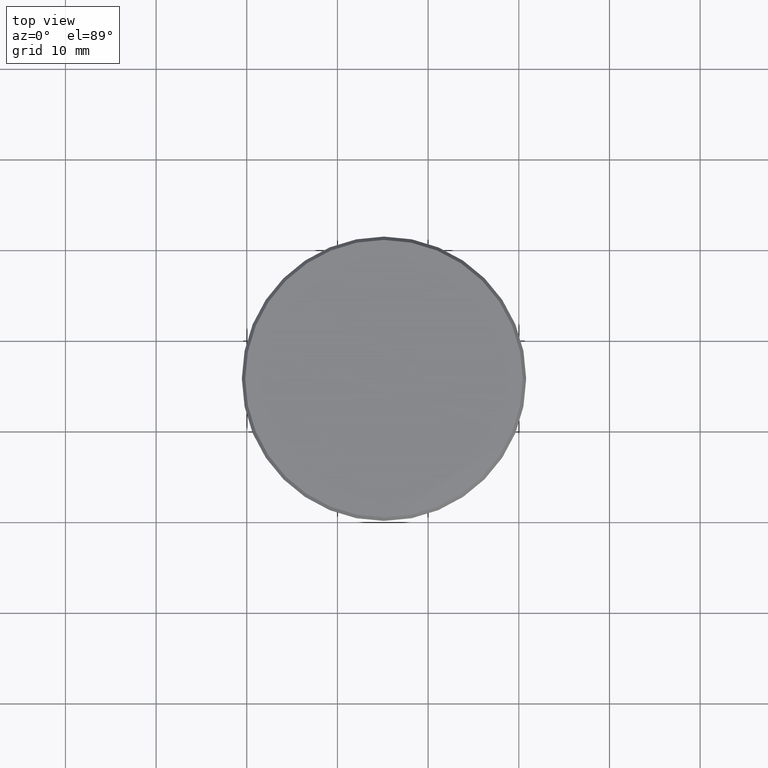
[diagram: clean part render]
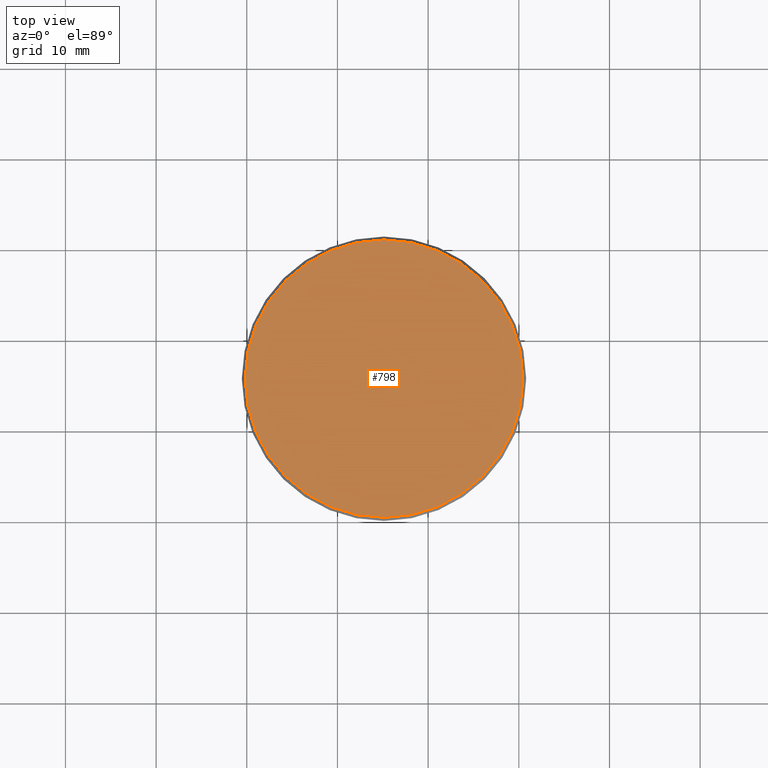
[diagram: same view with one face highlighted and labeled with its STEP entity id]
A machine part, top view. The second image highlights one B-rep face of the part: STEP entity #798.
In plain terms, the highlighted planar face has unit normal (0, 0, -1).
Its self-contained STEP definition (entity closure, byte-faithful):
#211 = PLANE ( 'NONE',  #1502 ) ;
#296 = VERTEX_POINT ( 'NONE', #1830 ) ;
#361 = CIRCLE ( 'NONE', #2181, 0.6024720511839321002 ) ;
#432 = DIRECTION ( 'NONE',  ( -1.000000000000000000, 0.000000000000000000, 0.000000000000000000 ) ) ;
#661 = ORIENTED_EDGE ( 'NONE', *, *, #2108, .T. ) ;
#685 = VERTEX_POINT ( 'NONE', #1218 ) ;
#694 = AXIS2_PLACEMENT_3D ( 'NONE', #1337, #1509, #782 ) ;
#782 = DIRECTION ( 'NONE',  ( -1.000000000000000000, 0.000000000000000000, 0.000000000000000000 ) ) ;
#792 = DIRECTION ( 'NONE',  ( 0.000000000000000000, 0.000000000000000000, -1.000000000000000000 ) ) ;
#798 = ADVANCED_FACE ( 'NONE', ( #1626 ), #211, .F. ) ;
#813 = EDGE_LOOP ( 'NONE', ( #661, #1834 ) ) ;
#1145 = CARTESIAN_POINT ( 'NONE',  ( -0.1915898273757628278, 1.595192042776405028, 2.738488428938869124 ) ) ;
#1184 = EDGE_CURVE ( 'NONE', #685, #296, #361, .T. ) ;
#1218 = CARTESIAN_POINT ( 'NONE',  ( 0.4108822238081692446, 0.9719871311564924898, 2.738488428938869124 ) ) ;
#1309 = DIRECTION ( 'NONE',  ( -1.000000000000000000, 0.000000000000000000, -0.000000000000000000 ) ) ;
#1337 = CARTESIAN_POINT ( 'NONE',  ( -0.1915898273757628278, 0.9719871311564923788, 2.738488428938869124 ) ) ;
#1379 = CARTESIAN_POINT ( 'NONE',  ( -0.1915898273757628278, 0.9719871311564923788, 2.738488428938869124 ) ) ;
#1502 = AXIS2_PLACEMENT_3D ( 'NONE', #1145, #792, #1309 ) ;
#1509 = DIRECTION ( 'NONE',  ( -0.000000000000000000, -0.000000000000000000, 1.000000000000000000 ) ) ;
#1626 = FACE_OUTER_BOUND ( 'NONE', #813, .T. ) ;
#1665 = CIRCLE ( 'NONE', #694, 0.6024720511839321002 ) ;
#1830 = CARTESIAN_POINT ( 'NONE',  ( -0.7940618785596949003, 0.9719871311564923788, 2.738488428938869124 ) ) ;
#1834 = ORIENTED_EDGE ( 'NONE', *, *, #1184, .T. ) ;
#2058 = DIRECTION ( 'NONE',  ( -0.000000000000000000, -0.000000000000000000, 1.000000000000000000 ) ) ;
#2108 = EDGE_CURVE ( 'NONE', #296, #685, #1665, .T. ) ;
#2181 = AXIS2_PLACEMENT_3D ( 'NONE', #1379, #2058, #432 ) ;